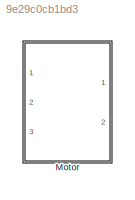
MODEL slx_9e29c0cb1bd3
KIND library
CONFIG AbsTol = auto
CONFIG EnableMultiTasking = off
CONFIG FixedStep = auto
CONFIG MaxStep = auto
CONFIG MinStep = auto
CONFIG RelTol = 1e-3
CONFIG SampleTimeConstraint = Unconstrained
CONFIG SolverName = VariableStepAuto
CONFIG StartTime = 0.0
CONFIG StopTime = 10.0
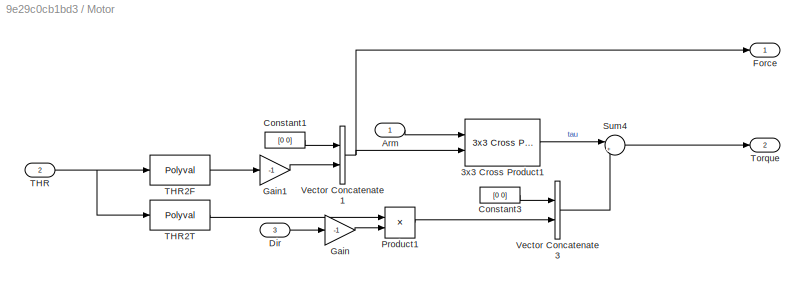
BLOCK [SubSystem] Motor
  Ports = [3, 2]
  RequestExecContextInheritance = off
BLOCK [Reference] Motor/3x3 Cross Product1  REF=sharedutil/3x3 Cross Product
  Ports = [2, 1]
  SourceBlock = sharedutil/3x3 Cross Product
  SourceProductBaseCode = AE,PW,MT,VE,VP
  SourceType = CrossProduct
BLOCK [Inport] Motor/Arm
BLOCK [Constant] Motor/Constant1
  Value = [0 0]
BLOCK [Constant] Motor/Constant3
  Value = [0 0]
BLOCK [Inport] Motor/Dir
  Port = 3
BLOCK [Outport] Motor/Force
BLOCK [Gain] Motor/Gain
  Gain = -1
BLOCK [Gain] Motor/Gain1
  Gain = -1
BLOCK [Product] Motor/Product1
  Ports = [2, 1]
BLOCK [Sum] Motor/Sum4
  Inputs = |++
  Ports = [2, 1]
BLOCK [Inport] Motor/THR
  Port = 2
BLOCK [Polyval] Motor/THR2F
  Coefs = Controller.Throttle2F
BLOCK [Polyval] Motor/THR2T
  Coefs = Controller.Throttle2T
BLOCK [Outport] Motor/Torque
  Port = 2
BLOCK [Concatenate] Motor/Vector Concatenate1
  Mode = Multidimensional array
  Ports = [2, 1]
BLOCK [Concatenate] Motor/Vector Concatenate3
  Mode = Multidimensional array
  Ports = [2, 1]
LINE Motor/3x3 Cross Product1:1 -> Motor/Sum4:1
LINE Motor/Arm:1 -> Motor/3x3 Cross Product1:1
LINE Motor/Constant1:1 -> Motor/Vector Concatenate1:1
LINE Motor/Constant3:1 -> Motor/Vector Concatenate3:1
LINE Motor/Dir:1 -> Motor/Gain:1
LINE Motor/Gain1:1 -> Motor/Vector Concatenate1:2
LINE Motor/Gain:1 -> Motor/Product1:2
LINE Motor/Product1:1 -> Motor/Vector Concatenate3:2
LINE Motor/Sum4:1 -> Motor/Torque:1
LINE Motor/THR2F:1 -> Motor/Gain1:1
LINE Motor/THR2T:1 -> Motor/Product1:1
NET Motor/THR:1 -> Motor/THR2F:1, Motor/THR2T:1
NET Motor/Vector Concatenate1:1 -> Motor/3x3 Cross Product1:2, Motor/Force:1
LINE Motor/Vector Concatenate3:1 -> Motor/Sum4:2
note: NET lines group one-source signal fan-out (src -> all destinations, sorted); 1:1 wires keep LINE
